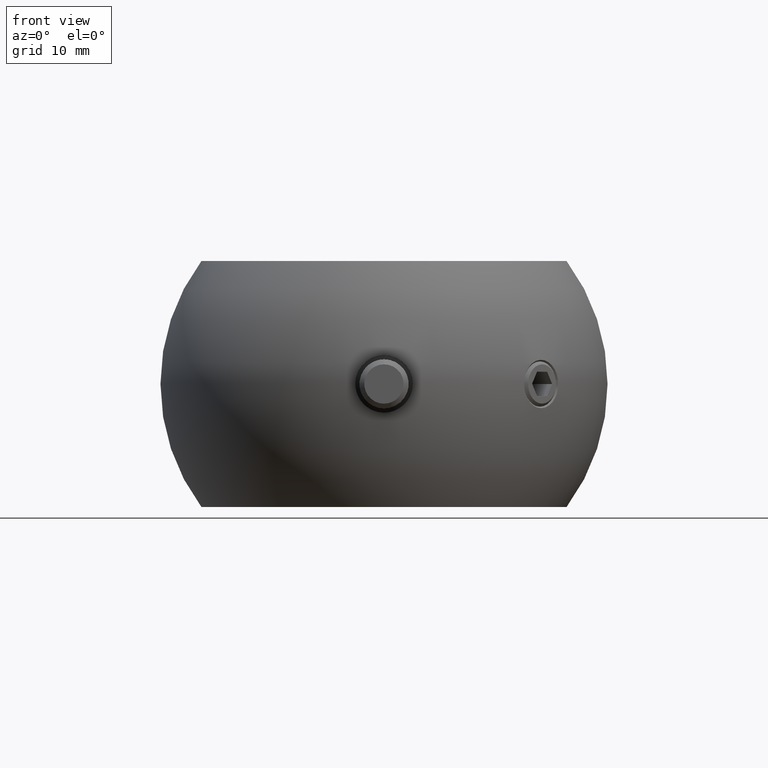
[diagram: clean part render]
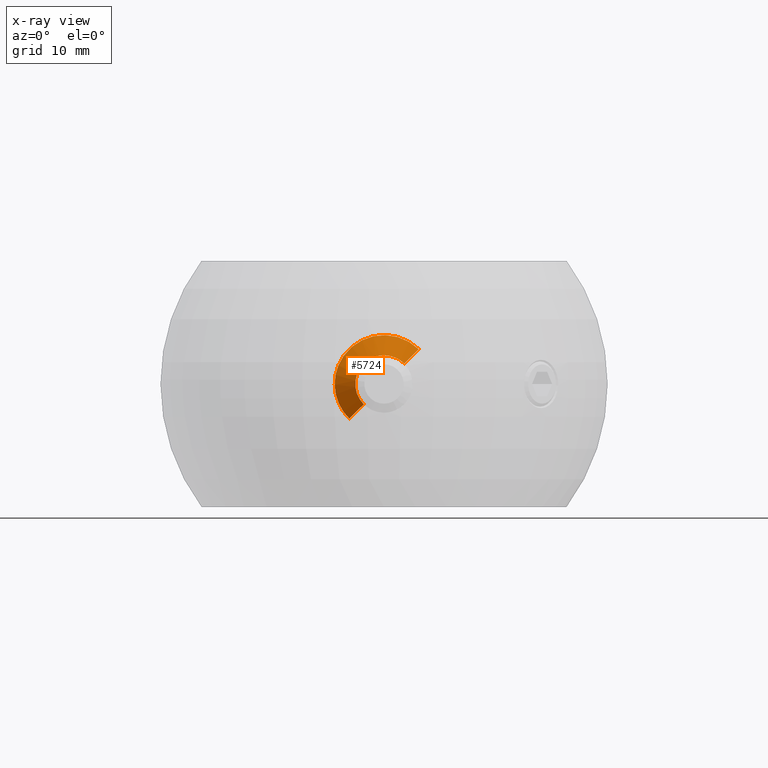
[diagram: x-ray — body ghosted, one internal face saturated and labeled with its STEP entity id]
A machine part, front view, then the same camera in x-ray: the body is ghosted and one INTERNAL B-rep face — a face not visible from any outside direction — is saturated and labeled: STEP entity #5724.
In plain terms, the highlighted face is a freeform B-spline surface patch.
Its self-contained STEP definition (entity closure, byte-faithful):
#24 = CARTESIAN_POINT ( 'NONE',  ( 3.282364973249175311, -25.48082615057239764, -1.220276380540873618 ) ) ;
#49 = CARTESIAN_POINT ( 'NONE',  ( 0.7555232709925503443, -22.91006091092566166, 5.919313512136131550 ) ) ;
#89 = CARTESIAN_POINT ( 'NONE',  ( 2.295486500742036640, -25.44360035326019442, 2.644569391084671928 ) ) ;
#124 = CARTESIAN_POINT ( 'NONE',  ( 1.424302790681607256, -25.42135967616169978, 3.198727177351953443 ) ) ;
#148 = CARTESIAN_POINT ( 'NONE',  ( 1.460036242942723606, -25.42205576136400680, -3.182992003121846381 ) ) ;
#215 = CARTESIAN_POINT ( 'NONE',  ( -3.378063669745372977, -25.48509094539927844, -0.9229876718442484584 ) ) ;
#353 = CARTESIAN_POINT ( 'NONE',  ( -3.040454979085132514, -25.47055834707507316, 1.737434841309210221 ) ) ;
#376 = CARTESIAN_POINT ( 'NONE',  ( -5.622915546619362992, -22.96742243791004157, -2.123957779113870181 ) ) ;
#420 = CARTESIAN_POINT ( 'NONE',  ( -3.052465891549558830, -25.47106384522342637, -1.713397059905905406 ) ) ;
#445 = CARTESIAN_POINT ( 'NONE',  ( -5.418942062148270900, -22.96329601174473112, 2.614469617302224602 ) ) ;
#493 = CARTESIAN_POINT ( 'NONE',  ( -1.864613902034035764, -25.43132753448517036, 2.964156210869118180 ) ) ;
#520 = CARTESIAN_POINT ( 'NONE',  ( -5.235948251918314256, -22.95971914098288380, 2.957268563597150735 ) ) ;
#593 = CARTESIAN_POINT ( 'NONE',  ( -0.3696045265670984681, -22.90945501245823479, -5.945458958592719334 ) ) ;
#646 = CARTESIAN_POINT ( 'NONE',  ( -4.235589029887262491, -22.94248222101545309, -4.227959823519237048 ) ) ;
#671 = CARTESIAN_POINT ( 'NONE',  ( -2.685210179210937298, -25.45680947745679745, 2.246611666195120982 ) ) ;
#731 = CARTESIAN_POINT ( 'NONE',  ( 0.5198235618508366684, -22.90975771003576256, -5.932072068999915793 ) ) ;
#805 = CARTESIAN_POINT ( 'NONE',  ( 6.015717314845489661, -22.97570402858719518, -0.1708585994565884336 ) ) ;
#816 = CARTESIAN_POINT ( 'NONE',  ( -3.400272063425885616, -25.48604937897846767, -0.8471772847589684741 ) ) ;
#874 = CARTESIAN_POINT ( 'NONE',  ( -1.962069322018792139, -22.91638021722531704, 5.631448716658423947 ) ) ;
#881 = CARTESIAN_POINT ( 'NONE',  ( -3.381024438421892153, -25.48519487166710107, 0.9090016474720568063 ) ) ;
#933 = CARTESIAN_POINT ( 'NONE',  ( 3.235933685150981454, -22.92871096188043722, 5.020085867473227381 ) ) ;
#944 = CARTESIAN_POINT ( 'NONE',  ( -2.865042743800155112, -25.46359174025339556, -2.010592627031695834 ) ) ;
#1016 = CARTESIAN_POINT ( 'NONE',  ( 5.199170646532258466, -22.95908656543113224, 3.001030138077303455 ) ) ;
#1084 = CARTESIAN_POINT ( 'NONE',  ( -1.397570426318764936, -22.91284536758873358, 5.793978323411631770 ) ) ;
#1097 = B_SPLINE_CURVE_WITH_KNOTS ( 'NONE', 3,
 ( #16223, #19468, #5038, #9927, #18045, #8354, #1592, #9786, #8083, #49, #12923, #4839, #4964, #19396, #1651, #2140, #11913, #8485, #18176, #2214, #7065, #11835, #19818, #6856, #18387, #10136, #8635, #520, #445, #5313, #19956, #13390, #5452, #16623, #5231, #10272, #6991, #19670, #6925, #18246, #376, #11768, #16556, #1992, #8563, #2069, #3621, #3686, #15158, #5170 ),
 .UNSPECIFIED., .F., .F.,
 ( 4, 2, 2, 2, 2, 2, 2, 2, 2, 2, 2, 2, 2, 2, 2, 2, 2, 2, 2, 2, 2, 2, 2, 2, 4 ),
 ( 0.4996494143775307428, 0.5308993051724757439, 0.5465242505699482445, 0.5621491959674207450, 0.5933990867623657461, 0.6246489775573107472, 0.6558988683522557483, 0.6715238137497281379, 0.6871487591472006384, 0.7183986499421457506, 0.7340235953396182511, 0.7496485407370907517, 0.7652734861345633632, 0.7808984315320358638, 0.8121483223269809759, 0.8277732677244535875, 0.8433982131219260880, 0.8746481039168712002, 0.9058979947118164233, 0.9215229401092890349, 0.9371478855067616465, 0.9527728309042342580, 0.9683977763017068696, 0.9840227216991794812, 0.9996476670966520928 ),
 .UNSPECIFIED. ) ;
#1151 = CARTESIAN_POINT ( 'NONE',  ( -5.125499192405364113, -22.95769637707143218, 3.122615682926257463 ) ) ;
#1220 = CARTESIAN_POINT ( 'NONE',  ( -1.978327770016263143, -25.43436894296240069, -2.887833548130362082 ) ) ;
#1297 = CARTESIAN_POINT ( 'NONE',  ( 0.07252280871251010064, -25.40738447176190107, -3.499725988042644786 ) ) ;
#1318 = B_SPLINE_SURFACE_WITH_KNOTS ( 'NONE', 1, 3, ( 
 ( #11917, #10274, #16703, #19881, #20101, #18467, #10429, #16918, #11838, #7068, #18248, #20029, #15234, #8565, #3989, #10354, #6993, #593, #2358, #2144, #18321, #3768, #731, #5315, #2071, #11770, #3688, #8637, #10211, #2289, #12053, #19958, #13464, #13609, #2216, #13679, #3914, #5529, #16844, #13537, #7140, #8777, #15018, #15307, #15087, #20166, #8857, #3840, #15160, #5454, #13830, #10503, #4192, #10718, #805, #5669, #7572, #12197, #20243, #7285, #5810, #4334, #16995, #15513, #2641, #14044, #17136, #12275, #15366, #1016, #13975, #20315, #18889, #9208, #13758, #10780, #17285, #10649, #20448, #933, #12124, #15579, #15645, #18825, #2419, #20381, #2572, #13900, #7425, #18607, #8926, #18757, #9064, #2500, #4131, #4068, #12340, #15441, #10573, #9136, #7494, #1084, #5938, #874, #4262, #5731, #5879, #17212, #17069, #7358, #12412, #18678, #2702, #8989, #10920, #15789, #2844, #9487, #4404, #1151, #10849, #12482, #17418, #6011, #17495, #19164, #7708, #9281, #6160, #4466, #20805, #2974, #4614, #19104, #10992, #9423, #20736, #2779, #14320, #20593, #19239, #15925, #14112, #6223, #1428, #14191, #20525, #14255, #11059, #15717 ),
 ( #12624, #6087, #11137, #19042, #17348, #7642, #1220, #12765, #1364, #12697, #9354, #17624, #17565, #18964, #12548, #3050, #7854, #20660, #2909, #1297, #4544, #15848, #14382, #7779, #4676, #15995, #6299, #7919, #7983, #9629, #13099, #148, #14576, #14713, #13035, #3326, #1772, #19373, #8058, #3394, #17956, #9699, #9555, #4883, #1630, #20934, #16198, #24, #1570, #9836, #19309, #3181, #4739, #16270, #14514, #6566, #4817, #11211, #5014, #6430, #16327, #12969, #11339, #17770, #12902, #6496, #3254, #16124, #17831, #6631, #8131, #19446, #9767, #8257, #14649, #11275, #89, #11411, #14445, #1699, #4943, #8195, #17891, #16058, #6365, #19519, #11476, #20870, #1501, #12827, #3121, #17698, #14782, #6692, #10183, #19795, #1840, #1963, #10031, #13231, #5147, #14993, #3528, #14841, #6761, #16466, #18082, #18025, #19650, #2116, #493, #3595, #3737, #2043, #13363, #11813, #8397, #19720, #13439, #6964, #353, #19588, #14921, #11678, #9966, #5207, #13292, #11612, #19858, #8331, #16535, #5085, #5287, #6832, #16599, #18151, #215, #15062, #8460, #5363, #10110, #420, #11746, #1896, #3667, #6905, #18221, #8537, #16679, #16399 ) ),
 .UNSPECIFIED., .F., .T., .F.,
 ( 2, 2 ),
 ( 4, 2, 2, 2, 2, 2, 2, 2, 2, 2, 2, 2, 2, 2, 2, 2, 2, 2, 2, 2, 2, 2, 2, 2, 2, 2, 2, 2, 2, 2, 2, 2, 2, 2, 2, 2, 2, 2, 2, 2, 2, 2, 2, 2, 2, 2, 2, 2, 2, 2, 2, 2, 2, 2, 2, 2, 2, 2, 2, 2, 2, 2, 2, 2, 2, 2, 2, 2, 2, 2, 2, 2, 2, 2, 4 ),
 ( 0.000000000000000000, 1.000000000000000000 ),
 ( 0.001402029234169606398, 0.002053989350116928927, 0.002379969408090589975, 0.002705949466064251456, 0.004009869697958896514, 0.004335849755932557996, 0.004661829813906219477, 0.005313789929853542440, 0.005965750045800865403, 0.006617710161748187499, 0.006943690219721848980, 0.007269670277695509594, 0.007921630393642832557, 0.008573590509590155520, 0.008899570567563817869, 0.009225550625537478483, 0.009877510741484801446, 0.01052947085743212441, 0.01118143097337944564, 0.01183339108932676860, 0.01248535120527409156, 0.01313731132122141279, 0.01378927143716873575, 0.01444123155311605872, 0.01509319166906338168, 0.01574515178501070464, 0.01639711190095802934, 0.01704907201690535057, 0.01770103213285267180, 0.01802701219082633588, 0.01835299224879999649, 0.01900495236474732119, 0.01965691248069464242, 0.01998289253866830303, 0.02030887259664196365, 0.02096083271258928488, 0.02161279282853660610, 0.02226475294448393080, 0.02291671306043125550, 0.02356867317637857673, 0.02389465323435223734, 0.02422063329232589796, 0.02487259340827321918, 0.02552455352422054041, 0.02585053358219420450, 0.02617651364016786511, 0.02682847375611518981, 0.02748043387206251104, 0.02813239398800983226, 0.02845837404598349635, 0.02878435410395715696, 0.02943631421990448166, 0.03008827433585180289, 0.03041425439382546350, 0.03074023445179912412, 0.03139219456774644534, 0.03204415468369377351, 0.03269611479964109474, 0.03334807491558841597, 0.03400003503153574413, 0.03465199514748306536, 0.03530395526343038659, 0.03595591537937770782, 0.03660787549532502905, 0.03725983561127235028, 0.03791179572721967150, 0.03856375584316699273, 0.03921571595911431396, 0.03986767607506164213, 0.04051963619100896336, 0.04117159630695628458, 0.04149757636492994867, 0.04182355642290361275, 0.04247551653885093398, 0.04312747665479825521 ),
 .UNSPECIFIED. ) ;
#1364 = CARTESIAN_POINT ( 'NONE',  ( -1.537961657145415995, -25.42343934250428461, -3.152263830883661910 ) ) ;
#1428 = CARTESIAN_POINT ( 'NONE',  ( -5.041635504968041914, -22.95615736461657619, -3.249364883879209298 ) ) ;
#1501 = CARTESIAN_POINT ( 'NONE',  ( 0.8899758684885701321, -25.41284754747175967, 3.385445273856201531 ) ) ;
#1570 = CARTESIAN_POINT ( 'NONE',  ( 3.320367011726562012, -25.48250933432404963, -1.112754407779535049 ) ) ;
#1592 = CARTESIAN_POINT ( 'NONE',  ( 2.457103090098726739, -22.92044795819886716, 5.437997338401265424 ) ) ;
#1630 = CARTESIAN_POINT ( 'NONE',  ( 3.040418310818453040, -25.47055659545050332, -1.737555175312089251 ) ) ;
#1651 = CARTESIAN_POINT ( 'NONE',  ( -1.587586414158670856, -22.91388870061614824, 5.745899828893271888 ) ) ;
#1699 = CARTESIAN_POINT ( 'NONE',  ( 1.882421134255421569, -25.43182960322533503, 2.951241042006079507 ) ) ;
#1743 = CARTESIAN_POINT ( 'NONE',  ( 1.725395470054061908, -25.42794095562329204, 3.045751017477527078 ) ) ;
#1772 = CARTESIAN_POINT ( 'NONE',  ( 2.142669703480338139, -25.43896811599094576, -2.769897070575337406 ) ) ;
#1840 = CARTESIAN_POINT ( 'NONE',  ( -0.2450514052798822284, -25.40769748271182493, 3.493308029793541714 ) ) ;
#1896 = CARTESIAN_POINT ( 'NONE',  ( -2.964457038771558750, -25.46749856888978059, -1.861533594419817694 ) ) ;
#1963 = CARTESIAN_POINT ( 'NONE',  ( -0.4170413438771924386, -25.40855681544660882, 3.475545464471366142 ) ) ;
#1992 = CARTESIAN_POINT ( 'NONE',  ( -5.197855687260518387, -22.95904299973946294, -3.003291268584145968 ) ) ;
#2043 = CARTESIAN_POINT ( 'NONE',  ( -2.320706118559829001, -25.44439498271421130, 2.622471823050809725 ) ) ;
#2069 = CARTESIAN_POINT ( 'NONE',  ( -4.876098979713962223, -22.95314731766211835, -3.492184241547009016 ) ) ;
#2071 = CARTESIAN_POINT ( 'NONE',  ( 1.007075765309408677, -22.91109509356176233, -5.872755868653934286 ) ) ;
#2116 = CARTESIAN_POINT ( 'NONE',  ( -1.766814728808961732, -25.42887912111110538, 3.023498594915990711 ) ) ;
#2140 = CARTESIAN_POINT ( 'NONE',  ( -1.961941872251654173, -22.91636168342531832, 5.631555655645057001 ) ) ;
#2144 = CARTESIAN_POINT ( 'NONE',  ( 0.1246828950301438199, -22.90928178745075527, -5.953063379960624957 ) ) ;
#2214 = CARTESIAN_POINT ( 'NONE',  ( -3.532057803799738327, -22.93237640264848309, 4.823616466213111131 ) ) ;
#2216 = CARTESIAN_POINT ( 'NONE',  ( 3.199729124948490711, -22.92824466135920147, -5.045550258564694523 ) ) ;
#2226 = CARTESIAN_POINT ( 'NONE',  ( -2.889375717494112816, -25.46453766825648302, 1.975299715366948261 ) ) ;
#2289 = CARTESIAN_POINT ( 'NONE',  ( 2.144282434586617381, -22.91782023326545925, -5.563513714493472762 ) ) ;
#2296 = CARTESIAN_POINT ( 'NONE',  ( -3.212200678656812247, -25.47778576370103210, -1.390017786116638510 ) ) ;
#2358 = CARTESIAN_POINT ( 'NONE',  ( -0.1730149270648071724, -22.90925367129023726, -5.954301915627254083 ) ) ;
#2365 = CARTESIAN_POINT ( 'NONE',  ( -3.127409352426946398, -25.47416408970176960, -1.573751416718313978 ) ) ;
#2419 = CARTESIAN_POINT ( 'NONE',  ( 2.455724086951247109, -22.92043696428260446, 5.438552930992841539 ) ) ;
#2500 = CARTESIAN_POINT ( 'NONE',  ( 0.3632710924530762608, -22.90944636357346909, 5.945839926039385936 ) ) ;
#2510 = CARTESIAN_POINT ( 'NONE',  ( -3.163665463684483203, -25.47570184189643072, -1.499195058282889903 ) ) ;
#2572 = CARTESIAN_POINT ( 'NONE',  ( 1.907960000189962368, -22.91598992094028731, 5.649640594115449943 ) ) ;
#2582 = CARTESIAN_POINT ( 'NONE',  ( -1.451083446994958948, -25.42194474858697717, 3.185278461598645805 ) ) ;
#2641 = CARTESIAN_POINT ( 'NONE',  ( 5.624795169624910329, -22.96746147601145793, 2.119005751642656143 ) ) ;
#2688 = VERTEX_POINT ( 'NONE', #3437 ) ;
#2702 = CARTESIAN_POINT ( 'NONE',  ( -3.686944404016377241, -22.93444578467637029, 4.708639712503183361 ) ) ;
#2713 = CARTESIAN_POINT ( 'NONE',  ( -1.968995402648378024, -25.43413195315037356, 2.893625377665574039 ) ) ;
#2779 = CARTESIAN_POINT ( 'NONE',  ( -5.689452855305801471, -22.96879138760040462, -1.942422315170815983 ) ) ;
#2786 = CARTESIAN_POINT ( 'NONE',  ( -2.351435266541689106, -25.44542894240165509, 2.592938106804024034 ) ) ;
#2844 = CARTESIAN_POINT ( 'NONE',  ( -4.545891945137048751, -22.94745130409806677, 3.904336501657320380 ) ) ;
#2850 = CARTESIAN_POINT ( 'NONE',  ( -0.6630223625213632621, -25.40970475892111224, 3.454810149684262921 ) ) ;
#2877 = EDGE_CURVE ( 'NONE', #11117, #20430, #1097, .T. ) ;
#2909 = CARTESIAN_POINT ( 'NONE',  ( -0.1006355238348125847, -25.40734905235857966, -3.500454106522658648 ) ) ;
#2921 = CARTESIAN_POINT ( 'NONE',  ( 4.231079390192859613, -22.94241214240999582, 4.232381003457183155 ) ) ;
#2974 = CARTESIAN_POINT ( 'NONE',  ( -6.013959391109469088, -22.97566584587954708, -0.2237190134191117674 ) ) ;
#3050 = CARTESIAN_POINT ( 'NONE',  ( -0.5550812708495505010, -25.40942493156452642, -3.457585851181773418 ) ) ;
#3121 = CARTESIAN_POINT ( 'NONE',  ( 0.7216938149398863800, -25.41096595239439893, 3.425273484436141658 ) ) ;
#3181 = CARTESIAN_POINT ( 'NONE',  ( 3.457635621748563093, -25.48872332022014220, -0.5550727945805127295 ) ) ;
#3220 = CARTESIAN_POINT ( 'NONE',  ( 0.7703268103870113404, -25.41145646531074576, 3.416068125193807425 ) ) ;
#3254 = CARTESIAN_POINT ( 'NONE',  ( 3.183084647697104419, -25.47653416811830951, 1.456458977963733803 ) ) ;
#3297 = CARTESIAN_POINT ( 'NONE',  ( 0.2143731080843483405, -25.40737116153889374, 3.500000000000000444 ) ) ;
#3326 = CARTESIAN_POINT ( 'NONE',  ( 2.050798301673069535, -25.43632486831521078, -2.838533622469491036 ) ) ;
#3365 = CARTESIAN_POINT ( 'NONE',  ( -5.120962423440803934E-13, -25.40737114222400805, 3.500000048887165871 ) ) ;
#3369 = CARTESIAN_POINT ( 'NONE',  ( 1.674252808019987659, -25.42674693389419005, 3.074106015192874075 ) ) ;
#3394 = CARTESIAN_POINT ( 'NONE',  ( 2.566404034061682715, -25.45257298610106034, -2.382567662321192437 ) ) ;
#3437 = CARTESIAN_POINT ( 'NONE',  ( 2.461515820899034424, -25.44903136447486247, 2.488159935266170297 ) ) ;
#3528 = CARTESIAN_POINT ( 'NONE',  ( -0.9234905776061560490, -25.41320865937102624, 3.377892210436604259 ) ) ;
#3595 = CARTESIAN_POINT ( 'NONE',  ( -2.053632606526542670, -25.43640478439362695, 2.836476883729510678 ) ) ;
#3621 = CARTESIAN_POINT ( 'NONE',  ( -4.757456600154458926, -22.95103482430187114, -3.649091722251677439 ) ) ;
#3667 = CARTESIAN_POINT ( 'NONE',  ( -2.933301178170773849, -25.46625923114604007, -1.910257963492495437 ) ) ;
#3686 = CARTESIAN_POINT ( 'NONE',  ( -4.507195871551036070, -22.94679121215506612, -3.948122942825840198 ) ) ;
#3688 = CARTESIAN_POINT ( 'NONE',  ( 1.581465348309153862, -22.91386943704327450, -5.747511154009786516 ) ) ;
#3737 = CARTESIAN_POINT ( 'NONE',  ( -2.144855340740941863, -25.43903356972219854, 2.768146031444868260 ) ) ;
#3768 = CARTESIAN_POINT ( 'NONE',  ( 0.4214808583526742369, -22.90958469885885407, -5.939709085530942900 ) ) ;
#3840 = CARTESIAN_POINT ( 'NONE',  ( 5.641225814034671160, -22.96779744985178695, -2.075700400329997475 ) ) ;
#3850 = CARTESIAN_POINT ( 'NONE',  ( -2.903533562288772796, -25.46509254108189424, 1.954468985135716874 ) ) ;
#3914 = CARTESIAN_POINT ( 'NONE',  ( 3.683188510689732631, -22.93439365150916842, -4.711618244811171863 ) ) ;
#3924 = CARTESIAN_POINT ( 'NONE',  ( -2.622775751610562089, -25.45455805504456848, 2.319936679653735290 ) ) ;
#3988 = CARTESIAN_POINT ( 'NONE',  ( 4.231079390192859613, -22.94241214240999582, 4.232381003457183155 ) ) ;
#3989 = CARTESIAN_POINT ( 'NONE',  ( -1.339356220364738448, -22.91254837255919341, -5.807412308980373972 ) ) ;
#3999 = CARTESIAN_POINT ( 'NONE',  ( -2.845763138352247701, -25.46284360112108658, -2.037872345843628530 ) ) ;
#4068 = CARTESIAN_POINT ( 'NONE',  ( -0.2248338688935855034, -22.90929373410519432, 5.952537265334967742 ) ) ;
#4131 = CARTESIAN_POINT ( 'NONE',  ( 0.1675103266911522892, -22.90925174553694532, 5.954386610569289751 ) ) ;
#4138 = CARTESIAN_POINT ( 'NONE',  ( -3.294231097284914700, -25.48135153306824208, 1.183876155950489784 ) ) ;
#4192 = CARTESIAN_POINT ( 'NONE',  ( 5.970170196532012419, -22.97471757904279244, -0.7513186716495694473 ) ) ;
#4204 = CARTESIAN_POINT ( 'NONE',  ( -2.391254262887375415, -25.44670729646078655, 2.556401081822489818 ) ) ;
#4262 = CARTESIAN_POINT ( 'NONE',  ( -2.146611992505897959, -22.91779451609530227, 5.565162284512216395 ) ) ;
#4334 = CARTESIAN_POINT ( 'NONE',  ( 5.855155575535111012, -22.97225723746975490, 1.377631493257336359 ) ) ;
#4404 = CARTESIAN_POINT ( 'NONE',  ( -4.909451605605029023, -22.95374278784836619, 3.446054871098714667 ) ) ;
#4466 = CARTESIAN_POINT ( 'NONE',  ( -6.007294444325784077, -22.97552061370385701, 0.3598734132251202866 ) ) ;
#4476 = CARTESIAN_POINT ( 'NONE',  ( -1.957170577961151903, -25.43381358301111916, 2.901640737535114312 ) ) ;
#4541 = B_SPLINE_CURVE_WITH_KNOTS ( 'NONE', 1,
 ( #646, #10261 ),
 .UNSPECIFIED., .F., .F.,
 ( 2, 2 ),
 ( 0.000000000000000000, 1.000000000000000000 ),
 .UNSPECIFIED. ) ;
#4544 = CARTESIAN_POINT ( 'NONE',  ( 0.1303504683288149446, -25.40746628123943651, -3.498045657374882822 ) ) ;
#4614 = CARTESIAN_POINT ( 'NONE',  ( -6.003411321988366467, -22.97543628747318323, -0.4173480234665221111 ) ) ;
#4676 = CARTESIAN_POINT ( 'NONE',  ( 0.5857794803868870970, -25.40966858343183077, -3.452514280991064499 ) ) ;
#4739 = CARTESIAN_POINT ( 'NONE',  ( 3.473895271572824850, -25.48947654440488009, -0.4416901538995224308 ) ) ;
#4817 = CARTESIAN_POINT ( 'NONE',  ( 3.493516828691690446, -25.49038693099318920, 0.2418963586773329733 ) ) ;
#4839 = CARTESIAN_POINT ( 'NONE',  ( -0.4228770496023622760, -22.90931607179532392, 5.951600232091993625 ) ) ;
#4883 = CARTESIAN_POINT ( 'NONE',  ( 2.981081768967504875, -25.46814437863504921, -1.837502109563391439 ) ) ;
#4911 = EDGE_CURVE ( 'NONE', #11117, #2688, #10911, .T. ) ;
#4943 = CARTESIAN_POINT ( 'NONE',  ( 1.833396785713461430, -25.43057800341174968, 2.981944164432705602 ) ) ;
#4964 = CARTESIAN_POINT ( 'NONE',  ( -0.8165644628775368119, -22.91022989945581401, 5.911492480494358048 ) ) ;
#4983 = CARTESIAN_POINT ( 'NONE',  ( 1.927505085230236448, -25.43302339222399056, 2.921428790817757193 ) ) ;
#5014 = CARTESIAN_POINT ( 'NONE',  ( 3.468654707860068687, -25.48923438652738938, 0.4709232394545750933 ) ) ;
#5038 = CARTESIAN_POINT ( 'NONE',  ( 3.645759456068237370, -22.93373964923106811, 4.751877461161388538 ) ) ;
#5085 = CARTESIAN_POINT ( 'NONE',  ( -3.499393376697344404, -25.49066137127877596, -0.1315214025626405547 ) ) ;
#5147 = CARTESIAN_POINT ( 'NONE',  ( -0.6447719979819004354, -25.41023696449955693, 3.440575334934415253 ) ) ;
#5170 = CARTESIAN_POINT ( 'NONE',  ( -4.235589029887262491, -22.94248222101545309, -4.227959823519237048 ) ) ;
#5207 = CARTESIAN_POINT ( 'NONE',  ( -3.386730309723505972, -25.48548287669715151, 0.8905371619676598627 ) ) ;
#5231 = CARTESIAN_POINT ( 'NONE',  ( -6.016880460340528813, -22.97572841918176323, 0.3629305975146365215 ) ) ;
#5287 = CARTESIAN_POINT ( 'NONE',  ( -3.493251253826315406, -25.49037456884513730, -0.2453532963727187155 ) ) ;
#5313 = CARTESIAN_POINT ( 'NONE',  ( -5.643824889454639226, -22.96785599756234220, 2.068944196294275173 ) ) ;
#5315 = CARTESIAN_POINT ( 'NONE',  ( 0.8132052472060394832, -22.91043416834420299, -5.902112880951432494 ) ) ;
#5363 = CARTESIAN_POINT ( 'NONE',  ( -3.183189952224986019, -25.47653038540217807, -1.459552661745612490 ) ) ;
#5452 = CARTESIAN_POINT ( 'NONE',  ( -5.867015845006043229, -22.97250848032127379, 1.327378354992163167 ) ) ;
#5454 = CARTESIAN_POINT ( 'NONE',  ( 5.819056613180532800, -22.97149212625662074, -1.520211258346091165 ) ) ;
#5463 = CARTESIAN_POINT ( 'NONE',  ( -3.442654823557362853, -25.48797679623438484, 0.6546516318540374080 ) ) ;
#5472 = ORIENTED_EDGE ( 'NONE', *, *, #5708, .F. ) ;
#5529 = CARTESIAN_POINT ( 'NONE',  ( 3.989247824626348748, -22.93871741734119851, -4.460849190854272450 ) ) ;
#5539 = CARTESIAN_POINT ( 'NONE',  ( -2.532766288009342226, -25.45144694566602794, 2.415737176903942185 ) ) ;
#5609 = CARTESIAN_POINT ( 'NONE',  ( -3.245409756819677138, -25.47922260798765137, 1.310611857088051835 ) ) ;
#5669 = CARTESIAN_POINT ( 'NONE',  ( 6.014194181711163267, -22.97567094975545032, 0.2171483827674359490 ) ) ;
#5678 = CARTESIAN_POINT ( 'NONE',  ( -3.254115094661297558, -25.47960109647071292, 1.288891691832822373 ) ) ;
#5708 = EDGE_CURVE ( 'NONE', #9880, #2688, #7767, .T. ) ;
#5724 = ADVANCED_FACE ( 'NONE', ( #18166 ), #1318, .T. ) ;
#5731 = CARTESIAN_POINT ( 'NONE',  ( -2.418868739528022616, -22.92014867707355918, 5.452131548782529258 ) ) ;
#5740 = CARTESIAN_POINT ( 'NONE',  ( -3.103971286715512701, -25.47313830320447181, 1.627308618303884291 ) ) ;
#5810 = CARTESIAN_POINT ( 'NONE',  ( 5.913983417335431092, -22.97351096989813968, 1.091293634535602575 ) ) ;
#5879 = CARTESIAN_POINT ( 'NONE',  ( -2.508999818757142286, -22.92097375224153311, 5.412103885675687565 ) ) ;
#5938 = CARTESIAN_POINT ( 'NONE',  ( -1.587644255592448372, -22.91390635976035384, 5.745823098181992883 ) ) ;
#5949 = CARTESIAN_POINT ( 'NONE',  ( -2.011938927246574416, -25.43530653127327668, 2.863973404766371633 ) ) ;
#6011 = CARTESIAN_POINT ( 'NONE',  ( -5.643399646940029157, -22.96784192269844382, 2.069965782470214677 ) ) ;
#6087 = CARTESIAN_POINT ( 'NONE',  ( -2.383132132480044962, -25.44640402670163226, -2.565870755487003496 ) ) ;
#6160 = CARTESIAN_POINT ( 'NONE',  ( -5.970230826632479726, -22.97471886500173355, 0.7514787414596784121 ) ) ;
#6223 = CARTESIAN_POINT ( 'NONE',  ( -5.095156561317754296, -22.95714706907015312, -3.166484321735598240 ) ) ;
#6299 = CARTESIAN_POINT ( 'NONE',  ( 0.9198962657196223525, -25.41316217379356601, -3.378884595782989386 ) ) ;
#6365 = CARTESIAN_POINT ( 'NONE',  ( 1.428484705731508209, -25.42142720117578847, 3.197252206991574752 ) ) ;
#6430 = CARTESIAN_POINT ( 'NONE',  ( 3.451251133218502520, -25.48843184178616994, 0.5849665041298111046 ) ) ;
#6471 = CARTESIAN_POINT ( 'NONE',  ( 1.274315093596206205, -25.41862565340417035, 3.259807544234615939 ) ) ;
#6496 = CARTESIAN_POINT ( 'NONE',  ( 3.206541743787044041, -25.47753979087467613, 1.404056722565768522 ) ) ;
#6537 = CARTESIAN_POINT ( 'NONE',  ( 1.050718046249839333, -25.41503108800353772, 3.339073255133998330 ) ) ;
#6566 = CARTESIAN_POINT ( 'NONE',  ( 3.499530094537069314, -25.49066774800081703, 0.1276586170719505031 ) ) ;
#6631 = CARTESIAN_POINT ( 'NONE',  ( 3.025006866589517784, -25.46992702787117224, 1.764265302547114445 ) ) ;
#6692 = CARTESIAN_POINT ( 'NONE',  ( 0.2112994967889063880, -25.40759180907619807, 3.495479416521797944 ) ) ;
#6761 = CARTESIAN_POINT ( 'NONE',  ( -1.248655976978143567, -25.41810264580624690, 3.271684145066698246 ) ) ;
#6832 = CARTESIAN_POINT ( 'NONE',  ( -3.469873645238651161, -25.48929036798712744, -0.4722062064014554417 ) ) ;
#6856 = CARTESIAN_POINT ( 'NONE',  ( -4.413359488453763468, -22.94526883843120046, 4.050638404854471020 ) ) ;
#6905 = CARTESIAN_POINT ( 'NONE',  ( -2.836409595992004817, -25.46246697641983303, -2.053799603997271017 ) ) ;
#6925 = CARTESIAN_POINT ( 'NONE',  ( -5.806037281273473738, -22.97119597533945878, -1.568577455325657732 ) ) ;
#6964 = CARTESIAN_POINT ( 'NONE',  ( -2.982119622176913509, -25.46818659557383668, 1.835743810992383374 ) ) ;
#6991 = CARTESIAN_POINT ( 'NONE',  ( -5.972665023020987896, -22.97476641449397761, -0.8055690828019406169 ) ) ;
#6993 = CARTESIAN_POINT ( 'NONE',  ( -0.7603501522843192362, -22.91027902493546620, -5.908998344773065625 ) ) ;
#7065 = CARTESIAN_POINT ( 'NONE',  ( -3.687624602817786812, -22.93443701958295478, 4.708197780923816467 ) ) ;
#7066 = CARTESIAN_POINT ( 'NONE',  ( 2.461515820899034424, -25.44903136447486247, 2.488159935266170297 ) ) ;
#7068 = CARTESIAN_POINT ( 'NONE',  ( -2.188600934960429178, -22.91817748232517715, -5.546597124682215885 ) ) ;
#7076 = CARTESIAN_POINT ( 'NONE',  ( -2.793850335040925170, -25.46083739210000374, 2.109980566406655100 ) ) ;
#7140 = CARTESIAN_POINT ( 'NONE',  ( 4.542203314947894199, -22.94739002190317123, -3.908509485505761383 ) ) ;
#7151 = CARTESIAN_POINT ( 'NONE',  ( -2.990499753209386657, -25.46852500038551526, -1.821576012458623106 ) ) ;
#7221 = CARTESIAN_POINT ( 'NONE',  ( -2.464140358208862569, -25.44911929112058147, -2.485560760682848258 ) ) ;
#7285 = CARTESIAN_POINT ( 'NONE',  ( 5.931281665334381614, -22.97388155824682343, 0.9950329500472967492 ) ) ;
#7296 = CARTESIAN_POINT ( 'NONE',  ( -3.227537009397150491, -25.47844774068443385, -1.354026402495752679 ) ) ;
#7358 = CARTESIAN_POINT ( 'NONE',  ( -3.037245867135666799, -22.92636315034143379, 5.142996573519320158 ) ) ;
#7367 = CARTESIAN_POINT ( 'NONE',  ( -2.739649885038947019, -25.45877515830204274, -2.182884126183613382 ) ) ;
#7425 = CARTESIAN_POINT ( 'NONE',  ( 1.530028091387668709, -22.91361962121439078, 5.758670922670260595 ) ) ;
#7494 = CARTESIAN_POINT ( 'NONE',  ( -1.108492288880067234, -22.91154643409826974, 5.852447620862929689 ) ) ;
#7572 = CARTESIAN_POINT ( 'NONE',  ( 6.003867405561966741, -22.97544618167636443, 0.4114677433311675903 ) ) ;
#7581 = CARTESIAN_POINT ( 'NONE',  ( -2.050000154353465387, -25.43636842734539272, 2.836982024593642127 ) ) ;
#7642 = CARTESIAN_POINT ( 'NONE',  ( -2.025435202550819103, -25.43566240254486033, -2.854981572603633833 ) ) ;
#7676 = EDGE_CURVE ( 'NONE', #9438, #9880, #14820, .T. ) ;
#7708 = CARTESIAN_POINT ( 'NONE',  ( -5.867190572052855657, -22.97251260477189305, 1.326485669090926578 ) ) ;
#7767 = B_SPLINE_CURVE_WITH_KNOTS ( 'NONE', 3,
 ( #13008, #3297, #16238, #3220, #12939, #6537, #8166, #16171, #6471, #9672, #19489, #124, #11449, #3369, #1743, #13070, #11384, #14690, #20979, #11317, #4983, #9740, #16306, #17929, #8235, #19563, #9882, #19414 ),
 .UNSPECIFIED., .F., .F.,
 ( 4, 2, 2, 1, 1, 2, 2, 2, 2, 1, 1, 2, 2, 2, 2, 4 ),
 ( 0.3761138916015622224, 0.4071519965791823847, 0.4226710490679925214, 0.4304305753123975342, 0.4343103384346000406, 0.4362502199957012383, 0.4381901015568024915, 0.4537091540456122951, 0.4614686802900171414, 0.4653484434122195923, 0.4672883249733207900, 0.4682582657538714166, 0.4692282065344219877, 0.4847472590232324019, 0.4925067852676375812, 0.5002663115120427051 ),
 .UNSPECIFIED. ) ;
#7779 = CARTESIAN_POINT ( 'NONE',  ( 0.4730103270060074805, -25.40883609772818374, -3.469772874140512275 ) ) ;
#7854 = CARTESIAN_POINT ( 'NONE',  ( -0.4422661438690781988, -25.40864067967860151, -3.473820745822402856 ) ) ;
#7919 = CARTESIAN_POINT ( 'NONE',  ( 1.084185251161491115, -25.41550377468358590, -3.328341285758852575 ) ) ;
#7983 = CARTESIAN_POINT ( 'NONE',  ( 1.138715199993958427, -25.41634319727256752, -3.310084581231345968 ) ) ;
#8058 = CARTESIAN_POINT ( 'NONE',  ( 2.405522889940084674, -25.44713478953582353, -2.544900517422471697 ) ) ;
#8083 = CARTESIAN_POINT ( 'NONE',  ( 1.531057907230152004, -22.91335891343185338, 5.770838387504212186 ) ) ;
#8131 = CARTESIAN_POINT ( 'NONE',  ( 2.965446022682422189, -25.46751745588337457, 1.862616910545211724 ) ) ;
#8166 = CARTESIAN_POINT ( 'NONE',  ( 1.134765691197182402, -25.41627582152713671, 3.311868105040302268 ) ) ;
#8195 = CARTESIAN_POINT ( 'NONE',  ( 1.734117165714027520, -25.42814427908482244, 3.040749934255210896 ) ) ;
#8235 = CARTESIAN_POINT ( 'NONE',  ( 2.254089708077096077, -25.44236896457580599, 2.678345615472383923 ) ) ;
#8257 = CARTESIAN_POINT ( 'NONE',  ( 2.620139340529923810, -25.45447112798493450, 2.323406416965025034 ) ) ;
#8331 = CARTESIAN_POINT ( 'NONE',  ( -3.495512379003362646, -25.49047992683522779, 0.2115647451217838038 ) ) ;
#8354 = CARTESIAN_POINT ( 'NONE',  ( 2.635446297619740808, -22.92211849191166451, 5.355661316763035806 ) ) ;
#8397 = CARTESIAN_POINT ( 'NONE',  ( -2.644739350849811821, -25.45535100614154445, 2.295306978741412429 ) ) ;
#8419 = ORIENTED_EDGE ( 'NONE', *, *, #7676, .F. ) ;
#8460 = CARTESIAN_POINT ( 'NONE',  ( -3.271409400170103954, -25.48034514951756790, -1.249348813033585692 ) ) ;
#8464 = ORIENTED_EDGE ( 'NONE', *, *, #16345, .F. ) ;
#8485 = CARTESIAN_POINT ( 'NONE',  ( -2.691687500563701985, -22.92250434304584772, 5.338851515965888694 ) ) ;
#8537 = CARTESIAN_POINT ( 'NONE',  ( -2.622073118474267606, -25.45454081031453697, -2.321155376831809836 ) ) ;
#8563 = CARTESIAN_POINT ( 'NONE',  ( -5.096057044022339610, -22.95714618084052105, -3.169540648348227574 ) ) ;
#8565 = CARTESIAN_POINT ( 'NONE',  ( -1.530405123081680641, -22.91357237514438694, -5.761064481775035162 ) ) ;
#8604 = CARTESIAN_POINT ( 'NONE',  ( -2.464140358208862569, -25.44911929112058147, -2.485560760682848258 ) ) ;
#8635 = CARTESIAN_POINT ( 'NONE',  ( -4.908146098185528494, -22.95371808501529998, 3.448007788263674378 ) ) ;
#8637 = CARTESIAN_POINT ( 'NONE',  ( 1.863885656400581903, -22.91572963096728088, -5.661536557995385799 ) ) ;
#8716 = CARTESIAN_POINT ( 'NONE',  ( -2.964504663901667669, -25.46750138887041004, 1.861154254541470765 ) ) ;
#8777 = CARTESIAN_POINT ( 'NONE',  ( 4.789474568206554927, -22.95161102899265870, -3.607707377465815490 ) ) ;
#8787 = CARTESIAN_POINT ( 'NONE',  ( -3.487142195833247804, -25.49006999231410475, -0.3421496490870302165 ) ) ;
#8857 = CARTESIAN_POINT ( 'NONE',  ( 5.492897929150952763, -22.96480170764610662, -2.434602679507373857 ) ) ;
#8864 = CARTESIAN_POINT ( 'NONE',  ( -3.278115641707219918, -25.48064383973798996, -1.227174424980814305 ) ) ;
#8926 = CARTESIAN_POINT ( 'NONE',  ( 1.240732025520645765, -22.91212530315932483, 5.826419044295345628 ) ) ;
#8989 = CARTESIAN_POINT ( 'NONE',  ( -3.989128811276300368, -22.93871667398556724, 4.460846657173449081 ) ) ;
#9000 = CARTESIAN_POINT ( 'NONE',  ( -2.925414331384681876, -25.46595425245952526, 1.921461006777178460 ) ) ;
#9011 = EDGE_LOOP ( 'NONE', ( #16406, #10563, #5472, #8419, #8464 ) ) ;
#9064 = CARTESIAN_POINT ( 'NONE',  ( 0.7539652362810558284, -22.91026100375651708, 5.909797404320825898 ) ) ;
#9075 = CARTESIAN_POINT ( 'NONE',  ( -2.077809072983406224, -25.43715784710934713, 2.816758313128492563 ) ) ;
#9136 = CARTESIAN_POINT ( 'NONE',  ( -1.011304022977856043, -22.91116185422040985, 5.869655687146804190 ) ) ;
#9208 = CARTESIAN_POINT ( 'NONE',  ( 4.503626390031779003, -22.94674946964740769, 3.952133882726113434 ) ) ;
#9216 = CARTESIAN_POINT ( 'NONE',  ( -1.977111642399008273, -25.43435158957822395, 2.888091487673655422 ) ) ;
#9281 = CARTESIAN_POINT ( 'NONE',  ( -5.942064289317561254, -22.97411090416413870, 0.9448605892176528132 ) ) ;
#9354 = CARTESIAN_POINT ( 'NONE',  ( -1.219412746174497242, -25.41765934366504709, -3.281209920501988453 ) ) ;
#9423 = CARTESIAN_POINT ( 'NONE',  ( -5.854993125959726541, -22.97225375265421832, -1.378540787037230153 ) ) ;
#9438 = VERTEX_POINT ( 'NONE', #8604 ) ;
#9487 = CARTESIAN_POINT ( 'NONE',  ( -4.793533755126953899, -22.95168205811764395, 3.602445413545855679 ) ) ;
#9555 = CARTESIAN_POINT ( 'NONE',  ( 2.854278267170013095, -25.46315481578073303, -2.028836371305793751 ) ) ;
#9629 = CARTESIAN_POINT ( 'NONE',  ( 1.247301821818499468, -25.41813484895556741, -3.270714972897409645 ) ) ;
#9672 = CARTESIAN_POINT ( 'NONE',  ( 1.302158388414785151, -25.41912035472490672, 3.248785575364593115 ) ) ;
#9699 = CARTESIAN_POINT ( 'NONE',  ( 2.786518098765914164, -25.46056448838820074, -2.120922701524220688 ) ) ;
#9740 = CARTESIAN_POINT ( 'NONE',  ( 1.994052589657123509, -25.43478705993793554, 2.877393755111611107 ) ) ;
#9767 = CARTESIAN_POINT ( 'NONE',  ( 2.767676889840279930, -25.45985514306284969, 2.145534874634075884 ) ) ;
#9786 = CARTESIAN_POINT ( 'NONE',  ( 1.908906995077601421, -22.91581746714826195, 5.659476918467569284 ) ) ;
#9836 = CARTESIAN_POINT ( 'NONE',  ( 3.385905682688935769, -25.48544551586577711, -0.8937117763703791296 ) ) ;
#9880 = VERTEX_POINT ( 'NONE', #3365 ) ;
#9882 = CARTESIAN_POINT ( 'NONE',  ( 2.408243334403370017, -25.44724810364289169, 2.540861960764841943 ) ) ;
#9927 = CARTESIAN_POINT ( 'NONE',  ( 3.154438912334402545, -22.92771008750945327, 5.073410779223316069 ) ) ;
#9966 = CARTESIAN_POINT ( 'NONE',  ( -3.321594815087064667, -25.48256393739458048, 1.109056301673202460 ) ) ;
#10031 = CARTESIAN_POINT ( 'NONE',  ( -0.4744861114817872649, -25.40891298306405233, 3.468167578652733507 ) ) ;
#10110 = CARTESIAN_POINT ( 'NONE',  ( -3.133972193348740998, -25.47443788682284449, -1.562459663468406257 ) ) ;
#10136 = CARTESIAN_POINT ( 'NONE',  ( -4.791492162593662840, -22.95162785863002597, 3.605215683242405156 ) ) ;
#10183 = CARTESIAN_POINT ( 'NONE',  ( 0.09743373105303328174, -25.40734662631889407, 3.500503897541297871 ) ) ;
#10211 = CARTESIAN_POINT ( 'NONE',  ( 1.957623591113075046, -22.91639655361969830, -5.630481749835928085 ) ) ;
#10261 = CARTESIAN_POINT ( 'NONE',  ( -2.464140358208862569, -25.44911929112058147, -2.485560760682848258 ) ) ;
#10272 = CARTESIAN_POINT ( 'NONE',  ( -6.012976299220831322, -22.97564536474169472, -0.4215335829084650987 ) ) ;
#10274 = CARTESIAN_POINT ( 'NONE',  ( -4.096396968867297872, -22.94031765663321920, -4.364567764559335039 ) ) ;
#10354 = CARTESIAN_POINT ( 'NONE',  ( -0.9543003173187294408, -22.91090164175501087, -5.881382652260529476 ) ) ;
#10364 = CARTESIAN_POINT ( 'NONE',  ( -2.988689968493668747, -25.46847053643139702, 1.822026472152046273 ) ) ;
#10429 = CARTESIAN_POINT ( 'NONE',  ( -3.400760013819730254, -22.93073204076656779, -4.912229186384477586 ) ) ;
#10441 = CARTESIAN_POINT ( 'NONE',  ( -2.475722202935521032, -25.44950607219808703, 2.474176785256053446 ) ) ;
#10503 = CARTESIAN_POINT ( 'NONE',  ( 5.942246484212149404, -22.97411477384277134, -0.9441834983414429949 ) ) ;
#10510 = CARTESIAN_POINT ( 'NONE',  ( -2.899505550841924073, -25.46493643545769103, -1.960337294371007566 ) ) ;
#10563 = ORIENTED_EDGE ( 'NONE', *, *, #4911, .T. ) ;
#10573 = CARTESIAN_POINT ( 'NONE',  ( -0.8157418090301308267, -22.91049521603724060, 5.899382259806888129 ) ) ;
#10649 = CARTESIAN_POINT ( 'NONE',  ( 3.641593627494592145, -22.93383251632234732, 4.743071977183325849 ) ) ;
#10655 = CARTESIAN_POINT ( 'NONE',  ( -3.466932262188155089, -25.48910470225928293, -0.5098432568201937132 ) ) ;
#10718 = CARTESIAN_POINT ( 'NONE',  ( 6.006926495638053254, -22.97551262910059577, -0.3645524591016608418 ) ) ;
#10780 = CARTESIAN_POINT ( 'NONE',  ( 4.091595676624561584, -22.94024525666721104, 4.368986898957691878 ) ) ;
#10849 = CARTESIAN_POINT ( 'NONE',  ( -5.225706996539941862, -22.95959088990087693, 2.955391297556632324 ) ) ;
#10911 = B_SPLINE_CURVE_WITH_KNOTS ( 'NONE', 1,
 ( #3988, #7066 ),
 .UNSPECIFIED., .F., .F.,
 ( 2, 2 ),
 ( 0.000000000000000000, 1.000000000000000000 ),
 .UNSPECIFIED. ) ;
#10920 = CARTESIAN_POINT ( 'NONE',  ( -4.134388787008505872, -22.94089196826942967, 4.329443647599702238 ) ) ;
#10992 = CARTESIAN_POINT ( 'NONE',  ( -5.933639755361919121, -22.97392990630800824, -0.9955001732968122852 ) ) ;
#10999 = CARTESIAN_POINT ( 'NONE',  ( -2.167991262014024034, -25.43977057354877047, 2.748724366180315126 ) ) ;
#11059 = CARTESIAN_POINT ( 'NONE',  ( -4.374781019647570268, -22.94464681327256272, -4.091351810310854376 ) ) ;
#11117 = VERTEX_POINT ( 'NONE', #2921 ) ;
#11137 = CARTESIAN_POINT ( 'NONE',  ( -2.298056729685743704, -25.44368019969889261, -2.642374357112781791 ) ) ;
#11211 = CARTESIAN_POINT ( 'NONE',  ( 3.475965178970734204, -25.48957285765984793, 0.4135219019703954002 ) ) ;
#11275 = CARTESIAN_POINT ( 'NONE',  ( 2.380337928619481236, -25.44631318300959677, 2.568468705233470484 ) ) ;
#11317 = CARTESIAN_POINT ( 'NONE',  ( 1.919966726890598219, -25.43282430657984605, 2.926395169097781856 ) ) ;
#11339 = CARTESIAN_POINT ( 'NONE',  ( 3.378690811187967213, -25.48511937641526259, 0.9205645306881404810 ) ) ;
#11384 = CARTESIAN_POINT ( 'NONE',  ( 1.841695091440441079, -25.43079750269673767, 2.976543564920006713 ) ) ;
#11411 = CARTESIAN_POINT ( 'NONE',  ( 2.118465329119038731, -25.43826347088317519, 2.788388297289690065 ) ) ;
#11449 = CARTESIAN_POINT ( 'NONE',  ( 1.522739228051309013, -25.42335915234456323, 3.153453071568529609 ) ) ;
#11476 = CARTESIAN_POINT ( 'NONE',  ( 1.109823554834937109, -25.41583148145624094, 3.321347808404307766 ) ) ;
#11612 = CARTESIAN_POINT ( 'NONE',  ( -3.457529535383880859, -25.48871848369013904, 0.5554708472109000095 ) ) ;
#11678 = CARTESIAN_POINT ( 'NONE',  ( -3.283630633935401555, -25.48088176675022254, 1.216905075743899278 ) ) ;
#11746 = CARTESIAN_POINT ( 'NONE',  ( -3.023979671261169067, -25.46989854791292274, -1.763190639219537337 ) ) ;
#11768 = CARTESIAN_POINT ( 'NONE',  ( -5.470426738655390864, -22.96435447271153407, -2.483788788658591873 ) ) ;
#11770 = CARTESIAN_POINT ( 'NONE',  ( 1.391123774343319575, -22.91281217354456601, -5.795480338096926864 ) ) ;
#11813 = CARTESIAN_POINT ( 'NONE',  ( -2.567875123337665766, -25.45262339243679861, 2.381044933705193767 ) ) ;
#11835 = CARTESIAN_POINT ( 'NONE',  ( -3.989808135943965439, -22.93870830594097754, 4.460337880884087447 ) ) ;
#11838 = CARTESIAN_POINT ( 'NONE',  ( -2.643907153119572584, -22.92203623701400872, -5.362027324380401971 ) ) ;
#11913 = CARTESIAN_POINT ( 'NONE',  ( -2.146378976215146839, -22.91779412260247284, 5.565267216318291688 ) ) ;
#11917 = CARTESIAN_POINT ( 'NONE',  ( -4.235588994257433626, -22.94248223495289096, -4.227959787435094263 ) ) ;
#12053 = CARTESIAN_POINT ( 'NONE',  ( 2.236777967305515702, -22.91857399275166784, -5.527738184417268386 ) ) ;
#12063 = CARTESIAN_POINT ( 'NONE',  ( -2.907772525356633331, -25.46526004275263588, -1.948074904449198952 ) ) ;
#12124 = CARTESIAN_POINT ( 'NONE',  ( 3.151677695767201026, -22.92771500009413543, 5.072312137299656243 ) ) ;
#12134 = CARTESIAN_POINT ( 'NONE',  ( -3.503864908468147910, -25.49087582925260165, -0.01256103246542269319 ) ) ;
#12197 = CARTESIAN_POINT ( 'NONE',  ( 5.973724943436348411, -22.97479466435715167, 0.7034042378882603419 ) ) ;
#12275 = CARTESIAN_POINT ( 'NONE',  ( 5.385523137761382806, -22.96268645658151897, 2.654080438660381791 ) ) ;
#12282 = CARTESIAN_POINT ( 'NONE',  ( -0.3244849256539856786, -25.40737111298841810, 3.499999999999998668 ) ) ;
#12340 = CARTESIAN_POINT ( 'NONE',  ( -0.4212979422694461129, -22.90953024746654521, 5.942146378927511741 ) ) ;
#12412 = CARTESIAN_POINT ( 'NONE',  ( -3.205331376243886865, -22.92831122891464446, 5.042054678479495067 ) ) ;
#12482 = CARTESIAN_POINT ( 'NONE',  ( -5.409849861719024489, -22.96315208013739095, 2.610643360512816535 ) ) ;
#12548 = CARTESIAN_POINT ( 'NONE',  ( -0.7790618846830816846, -25.41149874427029687, -3.414099680079493826 ) ) ;
#12624 = CARTESIAN_POINT ( 'NONE',  ( -2.464140357972031570, -25.44911930516136422, -2.485560760917637779 ) ) ;
#12631 = CARTESIAN_POINT ( 'NONE',  ( -4.235589029887262491, -22.94248222101545309, -4.227959823519237048 ) ) ;
#12697 = CARTESIAN_POINT ( 'NONE',  ( -1.273083987527565464, -25.41858438848322166, -3.260769937008733521 ) ) ;
#12765 = CARTESIAN_POINT ( 'NONE',  ( -1.739514097592825603, -25.42804667791695650, -3.045684889797181771 ) ) ;
#12827 = CARTESIAN_POINT ( 'NONE',  ( 0.7782499618771175909, -25.41155507156071991, 3.412864999947201383 ) ) ;
#12902 = CARTESIAN_POINT ( 'NONE',  ( 3.272798643846706490, -25.48040599083688917, 1.245735014816541364 ) ) ;
#12923 = CARTESIAN_POINT ( 'NONE',  ( 0.3655580964283888790, -22.90922940059803992, 5.955323688888753964 ) ) ;
#12939 = CARTESIAN_POINT ( 'NONE',  ( 0.8825435538567014682, -25.41273311730718021, 3.388921854957843927 ) ) ;
#12969 = CARTESIAN_POINT ( 'NONE',  ( 3.406924881273189154, -25.48640182760328088, 0.8098910478753049702 ) ) ;
#13008 = CARTESIAN_POINT ( 'NONE',  ( -5.120962423440803934E-13, -25.40737114222400805, 3.500000048887165871 ) ) ;
#13035 = CARTESIAN_POINT ( 'NONE',  ( 1.861354221777643758, -25.43124388232687494, -2.966211215441838522 ) ) ;
#13070 = CARTESIAN_POINT ( 'NONE',  ( 1.802811838330001137, -25.42982913003577394, 3.000127776064599239 ) ) ;
#13099 = CARTESIAN_POINT ( 'NONE',  ( 1.301111044110110804, -25.41908330419936846, -3.249683019372359816 ) ) ;
#13231 = CARTESIAN_POINT ( 'NONE',  ( -0.5882395931960694435, -25.40975261356972226, 3.450691725930436160 ) ) ;
#13292 = CARTESIAN_POINT ( 'NONE',  ( -3.413932467810429472, -25.48672100413050856, 0.7798231049422729155 ) ) ;
#13363 = CARTESIAN_POINT ( 'NONE',  ( -2.405242256387758903, -25.44712462847960310, 2.545221758981362381 ) ) ;
#13390 = CARTESIAN_POINT ( 'NONE',  ( -5.820171634223405555, -22.97149976775078883, 1.516163651392608003 ) ) ;
#13439 = CARTESIAN_POINT ( 'NONE',  ( -2.856355282856774203, -25.46323520235821292, 2.025889364659060554 ) ) ;
#13464 = CARTESIAN_POINT ( 'NONE',  ( 2.687242052158451688, -22.92265216607100342, -5.330287330277484692 ) ) ;
#13537 = CARTESIAN_POINT ( 'NONE',  ( 4.411301589798487299, -22.94523563521604714, -4.052767659326217853 ) ) ;
#13545 = CARTESIAN_POINT ( 'NONE',  ( -3.270426302813023156, -25.48031186158185690, 1.246923670657875904 ) ) ;
#13609 = CARTESIAN_POINT ( 'NONE',  ( 3.032106098741817579, -22.92630606189859321, -5.145916284397685558 ) ) ;
#13618 = CARTESIAN_POINT ( 'NONE',  ( -3.357119857695258336, -25.48412635718280228, 0.9938007061020834865 ) ) ;
#13679 = CARTESIAN_POINT ( 'NONE',  ( 3.525307040745646159, -22.93228893880029418, -4.828369597633011878 ) ) ;
#13690 = CARTESIAN_POINT ( 'NONE',  ( -2.453055633957092585, -25.44874706112329221, 2.496665559689849712 ) ) ;
#13758 = CARTESIAN_POINT ( 'NONE',  ( 4.370563107391768121, -22.94457902673138250, 4.095775111639078148 ) ) ;
#13766 = CARTESIAN_POINT ( 'NONE',  ( -2.623871452773150370, -25.45447161314288564, -2.327206218368777169 ) ) ;
#13830 = CARTESIAN_POINT ( 'NONE',  ( 5.866431411543686636, -22.97249641909186835, -1.330101526217474683 ) ) ;
#13900 = CARTESIAN_POINT ( 'NONE',  ( 1.625273746065314384, -22.91417987975216519, 5.733064851127976702 ) ) ;
#13975 = CARTESIAN_POINT ( 'NONE',  ( 5.096856870803619266, -22.95716196369591700, 3.168327051588082366 ) ) ;
#14044 = CARTESIAN_POINT ( 'NONE',  ( 5.510992387044232999, -22.96517006238757475, 2.388312309893236840 ) ) ;
#14112 = CARTESIAN_POINT ( 'NONE',  ( -5.197405191878985420, -22.95906395798639110, -2.999202126706246307 ) ) ;
#14191 = CARTESIAN_POINT ( 'NONE',  ( -4.875186223505398431, -22.95312953461905892, -3.493530423269529006 ) ) ;
#14198 = CARTESIAN_POINT ( 'NONE',  ( -5.120962423440803934E-13, -25.40737114222400805, 3.500000048887165871 ) ) ;
#14255 = CARTESIAN_POINT ( 'NONE',  ( -4.506948803329159148, -22.94680505589961683, -3.948304844501548061 ) ) ;
#14320 = CARTESIAN_POINT ( 'NONE',  ( -5.622409061573074851, -22.96741282729770361, -2.125152852844904849 ) ) ;
#14382 = CARTESIAN_POINT ( 'NONE',  ( 0.3023603500320198867, -25.40798400357359199, -3.487385478324675159 ) ) ;
#14445 = CARTESIAN_POINT ( 'NONE',  ( 2.026283744502690443, -25.43563919441703547, 2.856105673234936138 ) ) ;
#14514 = CARTESIAN_POINT ( 'NONE',  ( 3.500417008471341518, -25.49070907692499333, -0.1004454753172076137 ) ) ;
#14576 = CARTESIAN_POINT ( 'NONE',  ( 1.563177981562832830, -25.42421343240460985, -3.133604314763950516 ) ) ;
#14649 = CARTESIAN_POINT ( 'NONE',  ( 2.542693712695482944, -25.45174957455340348, 2.407851165776802027 ) ) ;
#14690 = CARTESIAN_POINT ( 'NONE',  ( 1.887303830990498810, -25.43196977034691386, 2.947627257066509632 ) ) ;
#14713 = CARTESIAN_POINT ( 'NONE',  ( 1.763824270676511041, -25.42880735831225536, -3.025215053718482761 ) ) ;
#14782 = CARTESIAN_POINT ( 'NONE',  ( 0.4385522402529065666, -25.40861797992312532, 3.474290502196016650 ) ) ;
#14820 = B_SPLINE_CURVE_WITH_KNOTS ( 'NONE', 3,
 ( #7221, #13766, #7367, #3999, #944, #20040, #15376, #10510, #12063, #18546, #7151, #18616, #2365, #2510, #15315, #2296, #7296, #20177, #20324, #8864, #20251, #816, #10655, #8787, #12134, #15451, #18690, #5463, #881, #13618, #18475, #4138, #13545, #5678, #5609, #17005, #5740, #10364, #8716, #17077, #9000, #15243, #3850, #2226, #16783, #7076, #671, #3924, #5539, #20109, #10441, #13690, #4204, #2786, #15521, #10999, #9075, #7581, #5949, #19048, #9216, #2713, #17145, #4476, #17220, #15590, #2582, #20458, #18899, #20603, #18766, #20392, #2850, #12282, #14198 ),
 .UNSPECIFIED., .F., .F.,
 ( 4, 2, 2, 2, 2, 1, 2, 2, 2, 2, 2, 2, 2, 2, 2, 2, 1, 2, 2, 2, 2, 2, 1, 2, 2, 2, 2, 2, 2, 2, 2, 1, 2, 2, 1, 2, 2, 2, 2, 4 ),
 ( 0.0002683473128280418969, 0.02375869383087495998, 0.02963128046038665184, 0.03109942711776458868, 0.03256757377514252205, 0.03550386708989835410, 0.04724904034892166149, 0.05899421360794495500, 0.06193050692270078705, 0.06486680023745661217, 0.07073938686696817912, 0.09422973338501451634, 0.1177200799030608674, 0.1412104264211072324, 0.1647007729391535835, 0.1764459461981767452, 0.1823185328276883399, 0.1852548261424441511, 0.1881911194571999069, 0.2116814659752461747, 0.2175540526047577417, 0.2190221992621356195, 0.2204903459195135251, 0.2234266392342692809, 0.2351718124932922760, 0.2469169857523152989, 0.2498532790670709991, 0.2527895723818266993, 0.2586621590113381552, 0.2704073322703609561, 0.2762799188998723565, 0.2792162122146281122, 0.2806843588720059901, 0.2814184322006949013, 0.2821525055293838125, 0.3056428520474283039, 0.3115154386769394823, 0.3173880253064506052, 0.3291331985654729619, 0.3761138916015622780 ),
 .UNSPECIFIED. ) ;
#14841 = CARTESIAN_POINT ( 'NONE',  ( -1.141300531771394455, -25.41632272101434609, 3.310653048035932411 ) ) ;
#14921 = CARTESIAN_POINT ( 'NONE',  ( -3.196859125728204631, -25.47711540537549979, 1.429460823918458301 ) ) ;
#14993 = CARTESIAN_POINT ( 'NONE',  ( -0.8129247018552732129, -25.41187272352632931, 3.406202020434493161 ) ) ;
#15018 = CARTESIAN_POINT ( 'NONE',  ( 4.905883454546305700, -22.95367861407362398, -3.451067754228830164 ) ) ;
#15062 = CARTESIAN_POINT ( 'NONE',  ( -3.310444373951376917, -25.48206900431991073, -1.141923984717332363 ) ) ;
#15087 = CARTESIAN_POINT ( 'NONE',  ( 5.225644027055920127, -22.95958948786812570, -2.955595986709090184 ) ) ;
#15158 = CARTESIAN_POINT ( 'NONE',  ( -4.374912836487921730, -22.94464797266449807, -4.091226688721026683 ) ) ;
#15160 = CARTESIAN_POINT ( 'NONE',  ( 5.706495131170742141, -22.96914354530801106, -1.892804619126266852 ) ) ;
#15234 = CARTESIAN_POINT ( 'NONE',  ( -1.814955270057834635, -22.91539444181195506, -5.677086083312425480 ) ) ;
#15243 = CARTESIAN_POINT ( 'NONE',  ( -2.916780734044260637, -25.46561402037892208, 1.934541692583614747 ) ) ;
#15307 = CARTESIAN_POINT ( 'NONE',  ( 5.123716381696373112, -22.95766265466893330, -3.125606563599058418 ) ) ;
#15315 = CARTESIAN_POINT ( 'NONE',  ( -3.204306404226943794, -25.47744586694984292, -1.408125803909512141 ) ) ;
#15366 = CARTESIAN_POINT ( 'NONE',  ( 5.340475773254074632, -22.96180751072587256, 2.741855688189771101 ) ) ;
#15376 = CARTESIAN_POINT ( 'NONE',  ( -2.891191224179947561, -25.46461152796515393, -1.972579035752390464 ) ) ;
#15441 = CARTESIAN_POINT ( 'NONE',  ( -0.7169832908140039152, -22.91021245251218375, 5.911932105720249631 ) ) ;
#15451 = CARTESIAN_POINT ( 'NONE',  ( -3.500798548990887049, -25.49071651946490746, 0.1504858158926927758 ) ) ;
#15513 = CARTESIAN_POINT ( 'NONE',  ( 5.691506206241964350, -22.96883380432698729, 1.936485780436426829 ) ) ;
#15521 = CARTESIAN_POINT ( 'NONE',  ( -2.237177115246500314, -25.44183834737185279, 2.693574188476537401 ) ) ;
#15579 = CARTESIAN_POINT ( 'NONE',  ( 2.981045873696603010, -22.92577871357620722, 5.172341247023275024 ) ) ;
#15590 = CARTESIAN_POINT ( 'NONE',  ( -1.634478408031777574, -25.42571469564400033, 3.099153610705660533 ) ) ;
#15645 = CARTESIAN_POINT ( 'NONE',  ( 2.894824384658639449, -22.92483985008462000, 5.220077044457678284 ) ) ;
#15717 = CARTESIAN_POINT ( 'NONE',  ( -4.235588994257433626, -22.94248223495289096, -4.227959787435094263 ) ) ;
#15789 = CARTESIAN_POINT ( 'NONE',  ( -4.413829219716438601, -22.94527582548129274, 4.050177485126170041 ) ) ;
#15848 = CARTESIAN_POINT ( 'NONE',  ( 0.2451581450397367079, -25.40776605992290627, -3.491875177748076098 ) ) ;
#15925 = CARTESIAN_POINT ( 'NONE',  ( -5.246337967656182322, -22.95999485949648289, -2.914502828938100532 ) ) ;
#15995 = CARTESIAN_POINT ( 'NONE',  ( 0.8091747225541122690, -25.41183092559098000, -3.407085034690374048 ) ) ;
#16058 = CARTESIAN_POINT ( 'NONE',  ( 1.532002364099532388, -25.42354735658594578, 3.148972812725550519 ) ) ;
#16124 = CARTESIAN_POINT ( 'NONE',  ( 3.133494799842514666, -25.47443245376780396, 1.560298235157708380 ) ) ;
#16171 = CARTESIAN_POINT ( 'NONE',  ( 1.232514890357735871, -25.41789556994501709, 3.276044460949967263 ) ) ;
#16198 = CARTESIAN_POINT ( 'NONE',  ( 3.196006788504996976, -25.47707910806174425, -1.431270209000061966 ) ) ;
#16223 = CARTESIAN_POINT ( 'NONE',  ( 4.231079390192859613, -22.94241214240999582, 4.232381003457183155 ) ) ;
#16238 = CARTESIAN_POINT ( 'NONE',  ( 0.4353585221889683110, -25.40839249472489314, 3.480253191970678284 ) ) ;
#16270 = CARTESIAN_POINT ( 'NONE',  ( 3.495298124423372066, -25.49046995067623556, -0.2143154933345652324 ) ) ;
#16306 = CARTESIAN_POINT ( 'NONE',  ( 2.071725947681861690, -25.43694262763032299, 2.823288095108622997 ) ) ;
#16327 = CARTESIAN_POINT ( 'NONE',  ( 3.441178727118231251, -25.48796872390028057, 0.6415568673841607339 ) ) ;
#16345 = EDGE_CURVE ( 'NONE', #20430, #9438, #4541, .T. ) ;
#16399 = CARTESIAN_POINT ( 'NONE',  ( -2.464140357972031570, -25.44911930516136422, -2.485560760917637779 ) ) ;
#16406 = ORIENTED_EDGE ( 'NONE', *, *, #2877, .F. ) ;
#16466 = CARTESIAN_POINT ( 'NONE',  ( -1.407044405815095045, -25.42106441062420075, 3.205234893975132060 ) ) ;
#16535 = CARTESIAN_POINT ( 'NONE',  ( -3.500521291525934942, -25.49071394208909780, 0.09695787275751015233 ) ) ;
#16556 = CARTESIAN_POINT ( 'NONE',  ( -5.384822455932324559, -22.96264264030458335, -2.660934045039022866 ) ) ;
#16599 = CARTESIAN_POINT ( 'NONE',  ( -3.452624077348811937, -25.48849230390885978, -0.5852411784062012678 ) ) ;
#16623 = CARTESIAN_POINT ( 'NONE',  ( -5.979834830587061667, -22.97491796987961621, 0.7523429928083864571 ) ) ;
#16679 = CARTESIAN_POINT ( 'NONE',  ( -2.545148583464018621, -25.45183458362109619, -2.405250766348272951 ) ) ;
#16703 = CARTESIAN_POINT ( 'NONE',  ( -3.950209065071782710, -22.93814714524729936, -4.494701035229612174 ) ) ;
#16783 = CARTESIAN_POINT ( 'NONE',  ( -2.840064368291427943, -25.46261388433099881, 2.046668126965220935 ) ) ;
#16844 = CARTESIAN_POINT ( 'NONE',  ( 4.134870941637561970, -22.94090007325333502, -4.328897213002583122 ) ) ;
#16918 = CARTESIAN_POINT ( 'NONE',  ( -2.990331842127329054, -22.92570011172630728, -5.180735647945019728 ) ) ;
#16995 = CARTESIAN_POINT ( 'NONE',  ( 5.806665425962223459, -22.97123121961142189, 1.565888019590703228 ) ) ;
#17005 = CARTESIAN_POINT ( 'NONE',  ( -3.178108784881366500, -25.47630300932106806, 1.474602334824335337 ) ) ;
#17069 = CARTESIAN_POINT ( 'NONE',  ( -2.776431212893823997, -22.92359586290647400, 5.282688531274224886 ) ) ;
#17077 = CARTESIAN_POINT ( 'NONE',  ( -2.932793093904055404, -25.46624546166123437, 1.910199232983817552 ) ) ;
#17136 = CARTESIAN_POINT ( 'NONE',  ( 5.470701822307607820, -22.96436621157549851, 2.477448987650373802 ) ) ;
#17145 = CARTESIAN_POINT ( 'NONE',  ( -1.967057909014312989, -25.43407954323913955, 2.894947119300170346 ) ) ;
#17212 = CARTESIAN_POINT ( 'NONE',  ( -2.687800976685854160, -22.92269734978079754, 5.327385482676024075 ) ) ;
#17220 = CARTESIAN_POINT ( 'NONE',  ( -1.794116287489641026, -25.42944460496745762, 3.011415483256226100 ) ) ;
#17285 = CARTESIAN_POINT ( 'NONE',  ( 3.945792424444274804, -22.93808353207993278, 4.498434806502286776 ) ) ;
#17348 = CARTESIAN_POINT ( 'NONE',  ( -2.118289489129733916, -25.43829575664350173, -2.786786384301096042 ) ) ;
#17418 = CARTESIAN_POINT ( 'NONE',  ( -5.494361945513138501, -22.96483071934064313, 2.431524900252502785 ) ) ;
#17495 = CARTESIAN_POINT ( 'NONE',  ( -5.708603892461640683, -22.96918721599224256, 1.886514109495183167 ) ) ;
#17565 = CARTESIAN_POINT ( 'NONE',  ( -1.055721331754652326, -25.41508186449417650, -3.337482642802729327 ) ) ;
#17624 = CARTESIAN_POINT ( 'NONE',  ( -1.110796184687529831, -25.41590852771700071, -3.319557181777179622 ) ) ;
#17698 = CARTESIAN_POINT ( 'NONE',  ( 0.5518518048568722412, -25.40939836645702243, 3.458139639909259877 ) ) ;
#17770 = CARTESIAN_POINT ( 'NONE',  ( 3.311639909387536829, -25.48212204150749827, 1.138433975703655010 ) ) ;
#17831 = CARTESIAN_POINT ( 'NONE',  ( 3.107269343577213849, -25.47333255443993849, 1.611900125189621669 ) ) ;
#17891 = CARTESIAN_POINT ( 'NONE',  ( 1.683951686897339872, -25.42696399374254668, 3.068813168286469661 ) ) ;
#17929 = CARTESIAN_POINT ( 'NONE',  ( 2.206264856550629982, -25.44091944687603757, 2.717654577079237299 ) ) ;
#17956 = CARTESIAN_POINT ( 'NONE',  ( 2.642592439806271454, -25.45527417780590440, -2.297760219886232136 ) ) ;
#18025 = CARTESIAN_POINT ( 'NONE',  ( -1.563504313874745977, -25.42427004465609031, 3.131898357542009848 ) ) ;
#18045 = CARTESIAN_POINT ( 'NONE',  ( 2.983417416538967970, -22.92574097563233693, 5.173826650019429430 ) ) ;
#18082 = CARTESIAN_POINT ( 'NONE',  ( -1.459480265898291274, -25.42210228377085457, 3.181703168564502970 ) ) ;
#18151 = CARTESIAN_POINT ( 'NONE',  ( -3.406830289961152225, -25.48639747286892998, -0.8104256094743179650 ) ) ;
#18166 = FACE_OUTER_BOUND ( 'NONE', #9011, .T. ) ;
#18176 = CARTESIAN_POINT ( 'NONE',  ( -3.038866103034449928, -22.92623936784913141, 5.153344378676179005 ) ) ;
#18221 = CARTESIAN_POINT ( 'NONE',  ( -2.767739032565705415, -25.45985830885467394, -2.145378511599118188 ) ) ;
#18246 = CARTESIAN_POINT ( 'NONE',  ( -5.690082283839609012, -22.96878357751159427, -1.940899881072892130 ) ) ;
#18248 = CARTESIAN_POINT ( 'NONE',  ( -2.096341949927668757, -22.91744236382745825, -5.581365708756285571 ) ) ;
#18321 = CARTESIAN_POINT ( 'NONE',  ( 0.2241015195411413807, -22.90934672748224088, -5.950205123343177860 ) ) ;
#18387 = CARTESIAN_POINT ( 'NONE',  ( -4.543683075099166579, -22.94739674342076086, 3.906944413026267604 ) ) ;
#18467 = CARTESIAN_POINT ( 'NONE',  ( -3.481717296404285733, -22.93176171306508593, -4.856347699333576351 ) ) ;
#18475 = CARTESIAN_POINT ( 'NONE',  ( -3.316060716452003287, -25.48231177601356734, 1.120586775042001104 ) ) ;
#18546 = CARTESIAN_POINT ( 'NONE',  ( -2.927211417163229967, -25.46602377327502609, -1.918848844876485771 ) ) ;
#18607 = CARTESIAN_POINT ( 'NONE',  ( 1.337959373242977534, -22.91259313210889914, 5.805312107676613209 ) ) ;
#18616 = CARTESIAN_POINT ( 'NONE',  ( -3.046419048356237891, -25.47080352100863365, -1.725315554060386836 ) ) ;
#18678 = CARTESIAN_POINT ( 'NONE',  ( -3.530177884615947725, -22.93235256607516348, 4.824871067714663120 ) ) ;
#18690 = CARTESIAN_POINT ( 'NONE',  ( -3.470280264824674887, -25.48926658743176432, 0.4851714593522356012 ) ) ;
#18757 = CARTESIAN_POINT ( 'NONE',  ( 0.9487483294895218133, -22.91088054934686014, 5.882324651550122852 ) ) ;
#18766 = CARTESIAN_POINT ( 'NONE',  ( -1.171758723391657986, -25.41685439653004508, 3.299267161502618784 ) ) ;
#18825 = CARTESIAN_POINT ( 'NONE',  ( 2.633656569194227082, -22.92212253259470245, 5.356429274738730761 ) ) ;
#18889 = CARTESIAN_POINT ( 'NONE',  ( 4.757105523791053336, -22.95104492350513681, 3.649572891206716463 ) ) ;
#18899 = CARTESIAN_POINT ( 'NONE',  ( -1.343639215620102911, -25.41987056914106446, 3.232048357024837948 ) ) ;
#18964 = CARTESIAN_POINT ( 'NONE',  ( -0.8901943161711184382, -25.41278816143088903, -3.386852415099288027 ) ) ;
#19042 = CARTESIAN_POINT ( 'NONE',  ( -2.164103424320669600, -25.43963823308701677, -2.751362114900236744 ) ) ;
#19048 = CARTESIAN_POINT ( 'NONE',  ( -1.993820259158385566, -25.43480614163065923, 2.876632259944901460 ) ) ;
#19104 = CARTESIAN_POINT ( 'NONE',  ( -5.963263597046897679, -22.97456858343707964, -0.8032267339580660970 ) ) ;
#19164 = CARTESIAN_POINT ( 'NONE',  ( -5.820472862960037297, -22.97152201543636352, 1.514811212509999949 ) ) ;
#19239 = CARTESIAN_POINT ( 'NONE',  ( -5.386344197968494285, -22.96269064742184796, -2.657757046419707780 ) ) ;
#19309 = CARTESIAN_POINT ( 'NONE',  ( 3.413490429011101224, -25.48670077563195946, -0.7819488187720564643 ) ) ;
#19373 = CARTESIAN_POINT ( 'NONE',  ( 2.320775339421106587, -25.44439592471990608, -2.622473312567732417 ) ) ;
#19396 = CARTESIAN_POINT ( 'NONE',  ( -1.398934279447239915, -22.91285389374433379, 5.793702877162189679 ) ) ;
#19414 = CARTESIAN_POINT ( 'NONE',  ( 2.461515820899034424, -25.44903136447486247, 2.488159935266170297 ) ) ;
#19446 = CARTESIAN_POINT ( 'NONE',  ( 2.836818299397174670, -25.46248287026355683, 2.053213619077105978 ) ) ;
#19468 = CARTESIAN_POINT ( 'NONE',  ( 3.950490008549757182, -22.93805383163560307, 4.507177422276530621 ) ) ;
#19489 = CARTESIAN_POINT ( 'NONE',  ( 1.317696313232509020, -25.41940169091249402, 3.242505265186200081 ) ) ;
#19519 = CARTESIAN_POINT ( 'NONE',  ( 1.217446254289562546, -25.41757033506474883, 3.283415147131917955 ) ) ;
#19563 = CARTESIAN_POINT ( 'NONE',  ( 2.354574149666063043, -25.44551582254437960, 2.590450968789713926 ) ) ;
#19588 = CARTESIAN_POINT ( 'NONE',  ( -3.147656750810817972, -25.47501527163154833, 1.534762160450336532 ) ) ;
#19650 = CARTESIAN_POINT ( 'NONE',  ( -1.615069333131442519, -25.42539991827782231, 3.105621620268900873 ) ) ;
#19670 = CARTESIAN_POINT ( 'NONE',  ( -5.855118863426715947, -22.97225392161531232, -1.377861615127812689 ) ) ;
#19720 = CARTESIAN_POINT ( 'NONE',  ( -2.788880851769909963, -25.46065348900139114, 2.117829263624421365 ) ) ;
#19795 = CARTESIAN_POINT ( 'NONE',  ( -0.1307764305216777556, -25.40739952166027038, 3.499416692322001587 ) ) ;
#19818 = CARTESIAN_POINT ( 'NONE',  ( -4.134990311377714001, -22.94090099741411848, 4.328851138701461210 ) ) ;
#19858 = CARTESIAN_POINT ( 'NONE',  ( -3.473930574468622190, -25.48947815170813769, 0.4417842567904551321 ) ) ;
#19881 = CARTESIAN_POINT ( 'NONE',  ( -3.720019637593982686, -22.93492755693549157, -4.680090129108685382 ) ) ;
#19956 = CARTESIAN_POINT ( 'NONE',  ( -5.708202149129258274, -22.96916624458943090, 1.887845236468761456 ) ) ;
#19958 = CARTESIAN_POINT ( 'NONE',  ( 2.509957356446639309, -22.92093665374645184, -5.414296204114879885 ) ) ;
#20029 = CARTESIAN_POINT ( 'NONE',  ( -1.909630465213810746, -22.91605119819148229, -5.646594723141418193 ) ) ;
#20040 = CARTESIAN_POINT ( 'NONE',  ( -2.886925585171504327, -25.46444497737941859, -1.978817880809633944 ) ) ;
#20101 = CARTESIAN_POINT ( 'NONE',  ( -3.641289485934885217, -22.93385844067108081, -4.740347109698872963 ) ) ;
#20109 = CARTESIAN_POINT ( 'NONE',  ( -2.514165866958964379, -25.45080988222215268, 2.435101883746624729 ) ) ;
#20166 = CARTESIAN_POINT ( 'NONE',  ( 5.409740983519529145, -22.96315015863935116, -2.610760481613220385 ) ) ;
#20177 = CARTESIAN_POINT ( 'NONE',  ( -3.236730670157895506, -25.47884549383435981, -1.331947482260560145 ) ) ;
#20243 = CARTESIAN_POINT ( 'NONE',  ( 5.961170200866922286, -22.97452378795728833, 0.8010443963748388185 ) ) ;
#20251 = CARTESIAN_POINT ( 'NONE',  ( -3.353814504505441718, -25.48395934575246713, -1.016816573964687942 ) ) ;
#20315 = CARTESIAN_POINT ( 'NONE',  ( 4.875888339737655564, -22.95314222333995247, 3.492533657985383844 ) ) ;
#20324 = CARTESIAN_POINT ( 'NONE',  ( -3.262096283555945497, -25.47994559031098660, -1.269159542128000639 ) ) ;
#20381 = CARTESIAN_POINT ( 'NONE',  ( 2.092963381952351209, -22.91737151242638859, 5.585116817825440449 ) ) ;
#20392 = CARTESIAN_POINT ( 'NONE',  ( -1.086986821420161453, -25.41554117724601980, 3.328106314262165188 ) ) ;
#20430 = VERTEX_POINT ( 'NONE', #12631 ) ;
#20448 = CARTESIAN_POINT ( 'NONE',  ( 3.483177716946100677, -22.93174304757923210, 4.858259803975427893 ) ) ;
#20458 = CARTESIAN_POINT ( 'NONE',  ( -1.414899997774454077, -25.42122831693323093, 3.201493545237442895 ) ) ;
#20525 = CARTESIAN_POINT ( 'NONE',  ( -4.757212231648140666, -22.95104745675576297, -3.649306916367332398 ) ) ;
#20593 = CARTESIAN_POINT ( 'NONE',  ( -5.470883316973996990, -22.96436309135545173, -2.482711369819168734 ) ) ;
#20603 = CARTESIAN_POINT ( 'NONE',  ( -1.298402511322167330, -25.41904312888464190, 3.250568641914180823 ) ) ;
#20660 = CARTESIAN_POINT ( 'NONE',  ( -0.2149834012709608833, -25.40760270453840874, -3.495255450877790881 ) ) ;
#20736 = CARTESIAN_POINT ( 'NONE',  ( -5.805588347717179687, -22.97120847421090772, -1.570009803095003598 ) ) ;
#20805 = CARTESIAN_POINT ( 'NONE',  ( -6.015896403891126454, -22.97570792264120598, 0.1649261581304126700 ) ) ;
#20870 = CARTESIAN_POINT ( 'NONE',  ( 0.9453807925869018858, -25.41355291681558981, 3.370391808386948629 ) ) ;
#20934 = CARTESIAN_POINT ( 'NONE',  ( 3.147593375140558258, -25.47501286377031349, -1.534831014371939251 ) ) ;
#20979 = CARTESIAN_POINT ( 'NONE',  ( 1.906895967295482830, -25.43248127781394530, 2.934929077166612110 ) ) ;